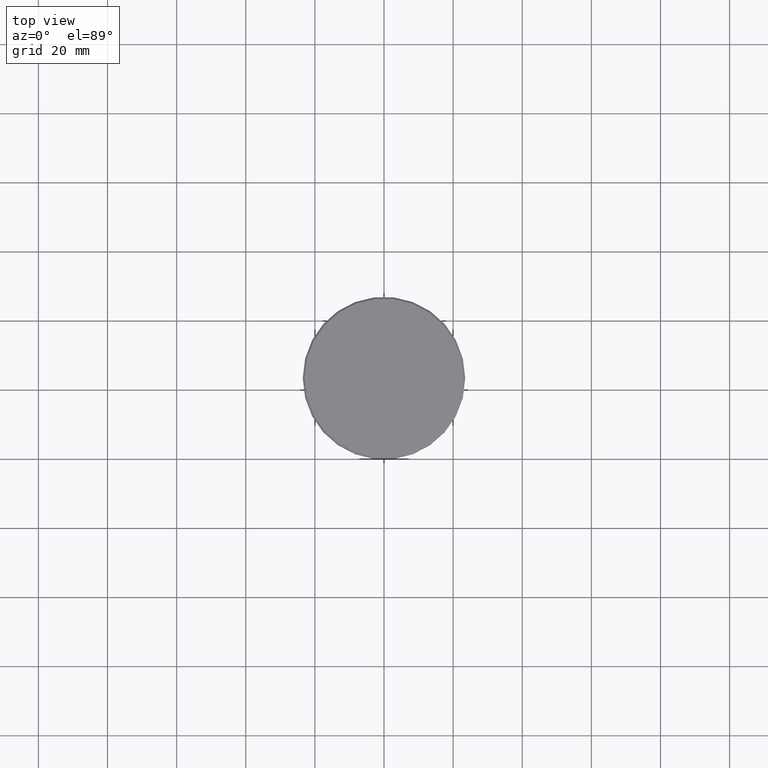
[diagram: clean part render]
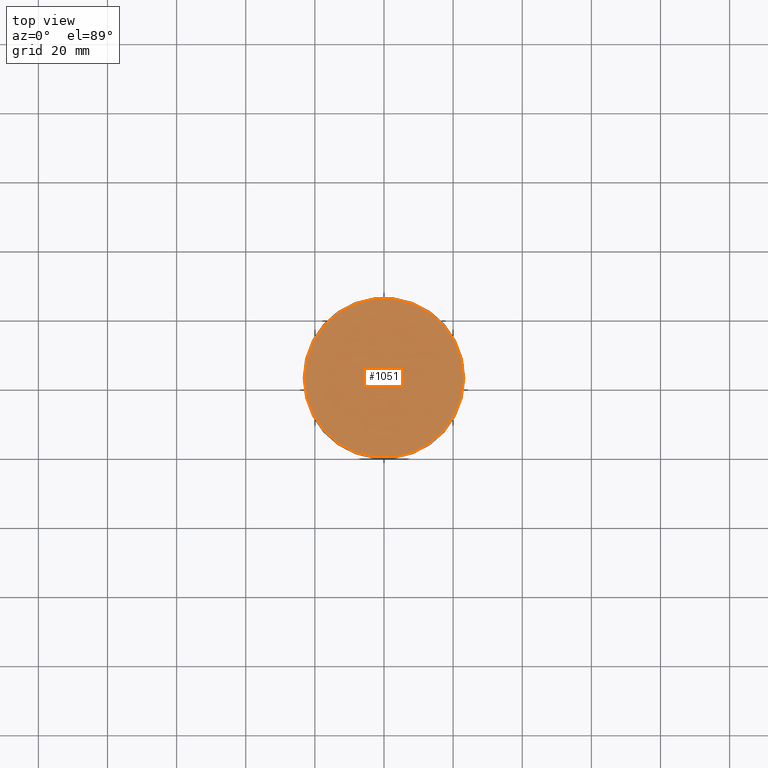
[diagram: same view with one face highlighted and labeled with its STEP entity id]
A machine part, top view. The second image highlights one B-rep face of the part: STEP entity #1051.
In plain terms, the highlighted planar face has unit normal (0, -0, 1).
Its self-contained STEP definition (entity closure, byte-faithful):
#78 = DIRECTION ( 'NONE',  ( 0.000000000000000000, -0.000000000000000000, 1.000000000000000000 ) ) ;
#106 = DIRECTION ( 'NONE',  ( -0.000000000000000000, -0.000000000000000000, 1.000000000000000000 ) ) ;
#109 = EDGE_CURVE ( 'NONE', #1057, #377, #1081, .T. ) ;
#193 = CARTESIAN_POINT ( 'NONE',  ( 0.000000000000000000, 0.000000000000000000, 0.000000000000000000 ) ) ;
#217 = AXIS2_PLACEMENT_3D ( 'NONE', #193, #1073, #546 ) ;
#246 = EDGE_CURVE ( 'NONE', #377, #1057, #916, .T. ) ;
#307 = CARTESIAN_POINT ( 'NONE',  ( 0.000000000000000000, 0.000000000000000000, 0.000000000000000000 ) ) ;
#336 = EDGE_LOOP ( 'NONE', ( #591, #705 ) ) ;
#351 = CARTESIAN_POINT ( 'NONE',  ( 22.99999999999999645, 2.847303808017596139E-15, 0.000000000000000000 ) ) ;
#377 = VERTEX_POINT ( 'NONE', #891 ) ;
#478 = AXIS2_PLACEMENT_3D ( 'NONE', #307, #106, #823 ) ;
#480 = AXIS2_PLACEMENT_3D ( 'NONE', #555, #78, #910 ) ;
#546 = DIRECTION ( 'NONE',  ( 1.000000000000000000, 0.000000000000000000, 0.000000000000000000 ) ) ;
#555 = CARTESIAN_POINT ( 'NONE',  ( 0.000000000000000000, 0.000000000000000000, 0.000000000000000000 ) ) ;
#591 = ORIENTED_EDGE ( 'NONE', *, *, #246, .T. ) ;
#641 = FACE_OUTER_BOUND ( 'NONE', #336, .T. ) ;
#705 = ORIENTED_EDGE ( 'NONE', *, *, #109, .T. ) ;
#823 = DIRECTION ( 'NONE',  ( 1.000000000000000000, 0.000000000000000000, 0.000000000000000000 ) ) ;
#891 = CARTESIAN_POINT ( 'NONE',  ( -22.99999999999999645, 0.000000000000000000, 0.000000000000000000 ) ) ;
#905 = PLANE ( 'NONE',  #480 ) ;
#910 = DIRECTION ( 'NONE',  ( 1.000000000000000000, 0.000000000000000000, 0.000000000000000000 ) ) ;
#916 = CIRCLE ( 'NONE', #478, 22.99999999999999645 ) ;
#1051 = ADVANCED_FACE ( 'NONE', ( #641 ), #905, .T. ) ;
#1057 = VERTEX_POINT ( 'NONE', #351 ) ;
#1073 = DIRECTION ( 'NONE',  ( -0.000000000000000000, -0.000000000000000000, 1.000000000000000000 ) ) ;
#1081 = CIRCLE ( 'NONE', #217, 22.99999999999999645 ) ;